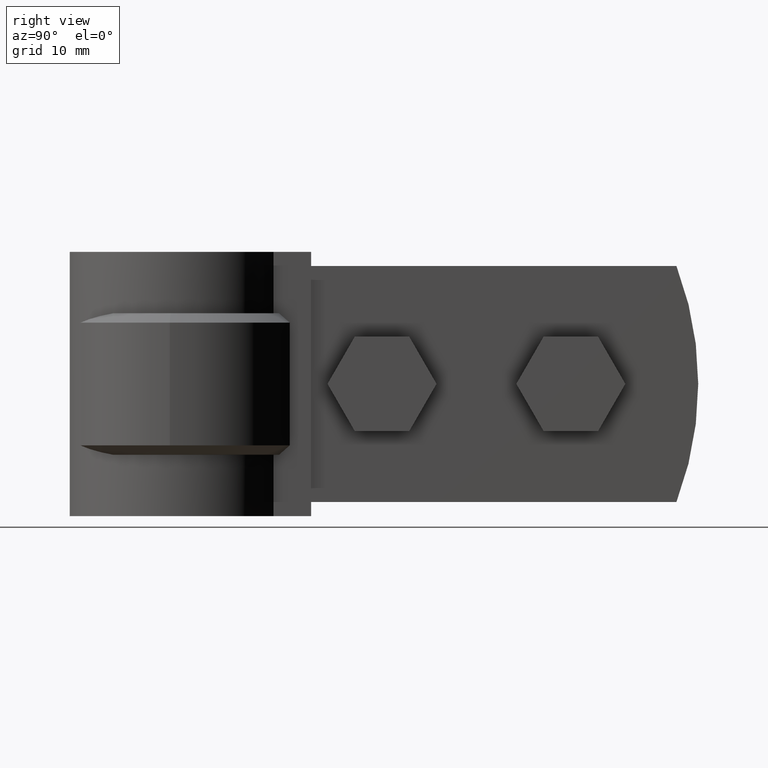
[diagram: clean part render]
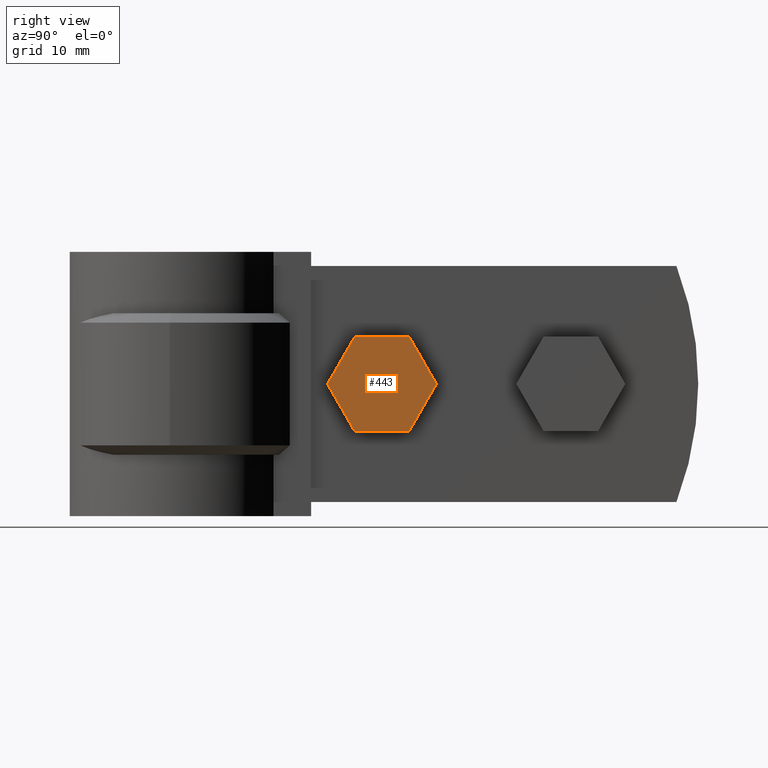
[diagram: same view with one face highlighted and labeled with its STEP entity id]
A machine part, right view. The second image highlights one B-rep face of the part: STEP entity #443.
In plain terms, the highlighted planar face has unit normal (-1, -0, -0).
Its self-contained STEP definition (entity closure, byte-faithful):
#443 = ADVANCED_FACE( '', ( #779 ), #780, .F. );
#779 = FACE_OUTER_BOUND( '', #1765, .T. );
#780 = PLANE( '', #1766 );
#1765 = EDGE_LOOP( '', ( #3918, #3919, #3920, #3921, #3922, #3923 ) );
#1766 = AXIS2_PLACEMENT_3D( '', #3924, #3925, #3926 );
#3918 = ORIENTED_EDGE( '', *, *, #4742, .T. );
#3919 = ORIENTED_EDGE( '', *, *, #4745, .T. );
#3920 = ORIENTED_EDGE( '', *, *, #4748, .T. );
#3921 = ORIENTED_EDGE( '', *, *, #4749, .T. );
#3922 = ORIENTED_EDGE( '', *, *, #4750, .T. );
#3923 = ORIENTED_EDGE( '', *, *, #4751, .T. );
#3924 = CARTESIAN_POINT( '', ( 9.10000000000085, 21.4554761014024, -22.5000000000024 ) );
#3925 = DIRECTION( '', ( -1.00000000000000, -3.04981400513481E-085, -1.58262579309878E-085 ) );
#3926 = DIRECTION( '', ( 1.84990350871492E-085, -0.866025403784439, 0.500000000000000 ) );
#4742 = EDGE_CURVE( '', #5494, #5492, #5495, .T. );
#4745 = EDGE_CURVE( '', #5492, #5497, #5499, .T. );
#4748 = EDGE_CURVE( '', #5497, #5504, #5505, .T. );
#4749 = EDGE_CURVE( '', #5504, #5506, #5507, .T. );
#4750 = EDGE_CURVE( '', #5506, #5508, #5509, .T. );
#4751 = EDGE_CURVE( '', #5508, #5494, #5510, .T. );
#5492 = VERTEX_POINT( '', #7822 );
#5494 = VERTEX_POINT( '', #7825 );
#5495 = LINE( '', #7826, #7827 );
#5497 = VERTEX_POINT( '', #7830 );
#5499 = LINE( '', #7833, #7834 );
#5504 = VERTEX_POINT( '', #7839 );
#5505 = LINE( '', #7840, #7841 );
#5506 = VERTEX_POINT( '', #7842 );
#5507 = LINE( '', #7843, #7844 );
#5508 = VERTEX_POINT( '', #7845 );
#5509 = LINE( '', #7846, #7847 );
#5510 = LINE( '', #7848, #7849 );
#7822 = CARTESIAN_POINT( '', ( 9.10000000000085, 27.2289787933004, -12.4999999999995 ) );
#7825 = CARTESIAN_POINT( '', ( 9.10000000000085, 24.3422274473514, -17.5000000000010 ) );
#7826 = CARTESIAN_POINT( '', ( 9.10000000000085, 24.3422274473514, -17.5000000000010 ) );
#7827 = VECTOR( '', #8666, 1000.00000000010 );
#7830 = CARTESIAN_POINT( '', ( 9.10000000000085, 24.3422274473523, -7.49999999999852 ) );
#7833 = CARTESIAN_POINT( '', ( 9.10000000000085, 27.2289787933004, -12.4999999999995 ) );
#7834 = VECTOR( '', #8669, 999.999999999940 );
#7839 = CARTESIAN_POINT( '', ( 9.10000000000085, 18.5687247554553, -7.49999999999905 ) );
#7840 = CARTESIAN_POINT( '', ( 9.10000000000085, 24.3422274473523, -7.49999999999852 ) );
#7841 = VECTOR( '', #8676, 999.999999999940 );
#7842 = CARTESIAN_POINT( '', ( 9.10000000000085, 15.6819734095063, -12.5000000000005 ) );
#7843 = CARTESIAN_POINT( '', ( 9.10000000000085, 18.5687247554553, -7.49999999999905 ) );
#7844 = VECTOR( '', #8677, 1000.00000000010 );
#7845 = CARTESIAN_POINT( '', ( 9.10000000000085, 18.5687247554544, -17.5000000000015 ) );
#7846 = CARTESIAN_POINT( '', ( 9.10000000000085, 15.6819734095063, -12.5000000000005 ) );
#7847 = VECTOR( '', #8678, 999.999999999940 );
#7848 = CARTESIAN_POINT( '', ( 9.10000000000085, 18.5687247554544, -17.5000000000015 ) );
#7849 = VECTOR( '', #8679, 999.999999999940 );
#8666 = DIRECTION( '', ( -2.89550114407544E-085, 0.500000000000000, 0.866025403784439 ) );
#8669 = DIRECTION( '', ( 1.54312861059050E-086, -0.499999999999921, 0.866025403784484 ) );
#8676 = DIRECTION( '', ( 3.04981400513495E-085, -1.00000000000000, -9.17044218340434E-014 ) );
#8677 = DIRECTION( '', ( 2.89550114407544E-085, -0.500000000000000, -0.866025403784439 ) );
#8678 = DIRECTION( '', ( -1.54312861059050E-086, 0.499999999999921, -0.866025403784484 ) );
#8679 = DIRECTION( '', ( -3.04981400513495E-085, 1.00000000000000, 9.17044218340434E-014 ) );